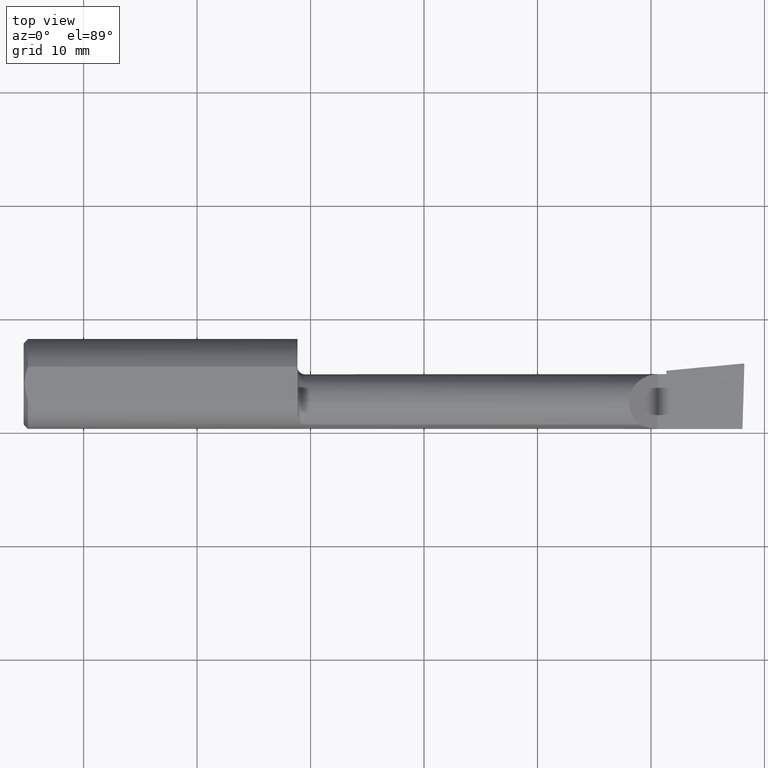
[diagram: clean part render]
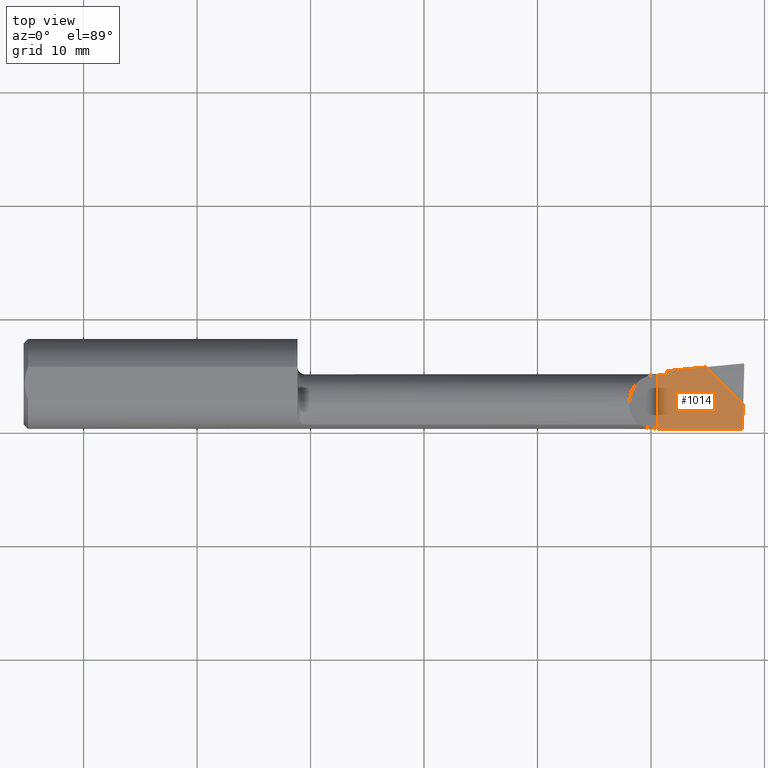
[diagram: same view with one face highlighted and labeled with its STEP entity id]
A machine part, top view. The second image highlights one B-rep face of the part: STEP entity #1014.
In plain terms, the highlighted planar face has unit normal (0, 0, -1).
Its self-contained STEP definition (entity closure, byte-faithful):
#29 = ORIENTED_EDGE ( 'NONE', *, *, #124, .F. ) ;
#50 = CARTESIAN_POINT ( 'NONE',  ( 56.64199999999999591, 1.165909707461280309, -8.673617379884035472E-16 ) ) ;
#65 = CARTESIAN_POINT ( 'NONE',  ( 55.88000000000000256, 0.8610600000000002696, -8.673617379884035472E-16 ) ) ;
#124 = EDGE_CURVE ( 'NONE', #252, #270, #713, .T. ) ;
#130 = CARTESIAN_POINT ( 'NONE',  ( 60.14048454551709000, 1.502775454482921269, 0.000000000000000000 ) ) ;
#140 = LINE ( 'NONE', #1092, #299 ) ;
#143 = ORIENTED_EDGE ( 'NONE', *, *, #355, .F. ) ;
#155 = CARTESIAN_POINT ( 'NONE',  ( 55.88000000000000256, -3.964939999999999465, -8.673617379884035472E-16 ) ) ;
#173 = VECTOR ( 'NONE', #1083, 1000.000000000000000 ) ;
#175 = LINE ( 'NONE', #379, #621 ) ;
#222 = CARTESIAN_POINT ( 'NONE',  ( 63.50000000000000000, -3.964939999999998577, -8.673617379884035472E-16 ) ) ;
#252 = VERTEX_POINT ( 'NONE', #744 ) ;
#258 = CARTESIAN_POINT ( 'NONE',  ( 56.19984000534059021, 1.123334542424496041, -8.673617379884035472E-16 ) ) ;
#264 = EDGE_LOOP ( 'NONE', ( #798, #1171, #357, #1167, #143, #427, #29 ) ) ;
#270 = VERTEX_POINT ( 'NONE', #155 ) ;
#299 = VECTOR ( 'NONE', #431, 1000.000000000000000 ) ;
#311 = EDGE_CURVE ( 'NONE', #622, #893, #1016, .T. ) ;
#343 = EDGE_CURVE ( 'NONE', #383, #893, #649, .T. ) ;
#355 = EDGE_CURVE ( 'NONE', #876, #383, #140, .T. ) ;
#357 = ORIENTED_EDGE ( 'NONE', *, *, #311, .T. ) ;
#368 = DIRECTION ( 'NONE',  ( -0.000000000000000000, 0.000000000000000000, -1.000000000000000000 ) ) ;
#379 = CARTESIAN_POINT ( 'NONE',  ( 63.56368066258591654, 4.242494003031995753, -8.673617379884035472E-16 ) ) ;
#383 = VERTEX_POINT ( 'NONE', #775 ) ;
#421 = EDGE_CURVE ( 'NONE', #252, #1031, #175, .T. ) ;
#427 = ORIENTED_EDGE ( 'NONE', *, *, #1101, .F. ) ;
#431 = DIRECTION ( 'NONE',  ( 1.000000000000000000, 0.000000000000000000, 0.000000000000000000 ) ) ;
#436 = AXIS2_PLACEMENT_3D ( 'NONE', #1222, #368, #1122 ) ;
#478 = VECTOR ( 'NONE', #545, 1000.000000000000114 ) ;
#545 = DIRECTION ( 'NONE',  ( -0.9953961983671787417, -0.09584575252022449476, 0.000000000000000000 ) ) ;
#585 = CARTESIAN_POINT ( 'NONE',  ( 63.40542582631751856, -1.762165826317532158, 0.000000000000000000 ) ) ;
#608 = CARTESIAN_POINT ( 'NONE',  ( 55.88000000000000256, 4.444999999999999396, -8.673617379884035472E-16 ) ) ;
#621 = VECTOR ( 'NONE', #852, 1000.000000000000114 ) ;
#622 = VERTEX_POINT ( 'NONE', #130 ) ;
#649 = LINE ( 'NONE', #1210, #880 ) ;
#713 = LINE ( 'NONE', #222, #803 ) ;
#721 = DIRECTION ( 'NONE',  ( 0.000000000000000000, 1.000000000000000000, 0.000000000000000000 ) ) ;
#726 = LINE ( 'NONE', #911, #173 ) ;
#741 = PLANE ( 'NONE',  #436 ) ;
#744 = CARTESIAN_POINT ( 'NONE',  ( 63.34737096957299229, -3.964939999999998577, -1.734723475976807094E-15 ) ) ;
#775 = CARTESIAN_POINT ( 'NONE',  ( 56.64199999999999591, 0.8610600000000002696, -8.673617379884035472E-16 ) ) ;
#791 = DIRECTION ( 'NONE',  ( -1.000000000000000000, -0.000000000000000000, -0.000000000000000000 ) ) ;
#798 = ORIENTED_EDGE ( 'NONE', *, *, #421, .T. ) ;
#800 = EDGE_CURVE ( 'NONE', #622, #1031, #726, .T. ) ;
#803 = VECTOR ( 'NONE', #791, 1000.000000000000000 ) ;
#852 = DIRECTION ( 'NONE',  ( 0.02634618898890611627, 0.9996528789163570128, 0.000000000000000000 ) ) ;
#876 = VERTEX_POINT ( 'NONE', #65 ) ;
#880 = VECTOR ( 'NONE', #721, 1000.000000000000000 ) ;
#893 = VERTEX_POINT ( 'NONE', #50 ) ;
#911 = CARTESIAN_POINT ( 'NONE',  ( 59.81700000000001438, 1.826260000000001327, 0.000000000000000000 ) ) ;
#934 = VECTOR ( 'NONE', #1243, 1000.000000000000000 ) ;
#942 = FACE_OUTER_BOUND ( 'NONE', #264, .T. ) ;
#1014 = ADVANCED_FACE ( 'NONE', ( #942 ), #741, .F. ) ;
#1016 = LINE ( 'NONE', #258, #478 ) ;
#1031 = VERTEX_POINT ( 'NONE', #585 ) ;
#1083 = DIRECTION ( 'NONE',  ( 0.7071067811865437980, -0.7071067811865513475, 0.000000000000000000 ) ) ;
#1092 = CARTESIAN_POINT ( 'NONE',  ( 24.12999999999999901, 0.8610600000000002696, -8.673617379884035472E-16 ) ) ;
#1101 = EDGE_CURVE ( 'NONE', #270, #876, #1152, .T. ) ;
#1122 = DIRECTION ( 'NONE',  ( -1.000000000000000000, 0.000000000000000000, 0.000000000000000000 ) ) ;
#1152 = LINE ( 'NONE', #608, #934 ) ;
#1167 = ORIENTED_EDGE ( 'NONE', *, *, #343, .F. ) ;
#1171 = ORIENTED_EDGE ( 'NONE', *, *, #800, .F. ) ;
#1210 = CARTESIAN_POINT ( 'NONE',  ( 56.64199999999999591, 4.444999999999999396, -8.673617379884035472E-16 ) ) ;
#1222 = CARTESIAN_POINT ( 'NONE',  ( 55.88000000000000256, 4.444999999999999396, -8.673617379884035472E-16 ) ) ;
#1243 = DIRECTION ( 'NONE',  ( -0.000000000000000000, 1.000000000000000000, -0.000000000000000000 ) ) ;